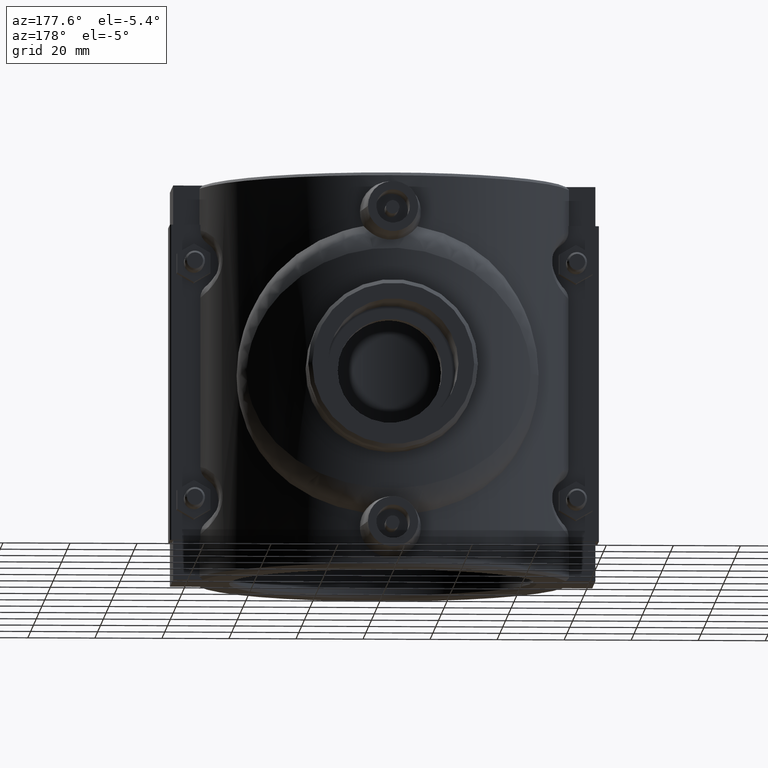
[diagram: clean part render]
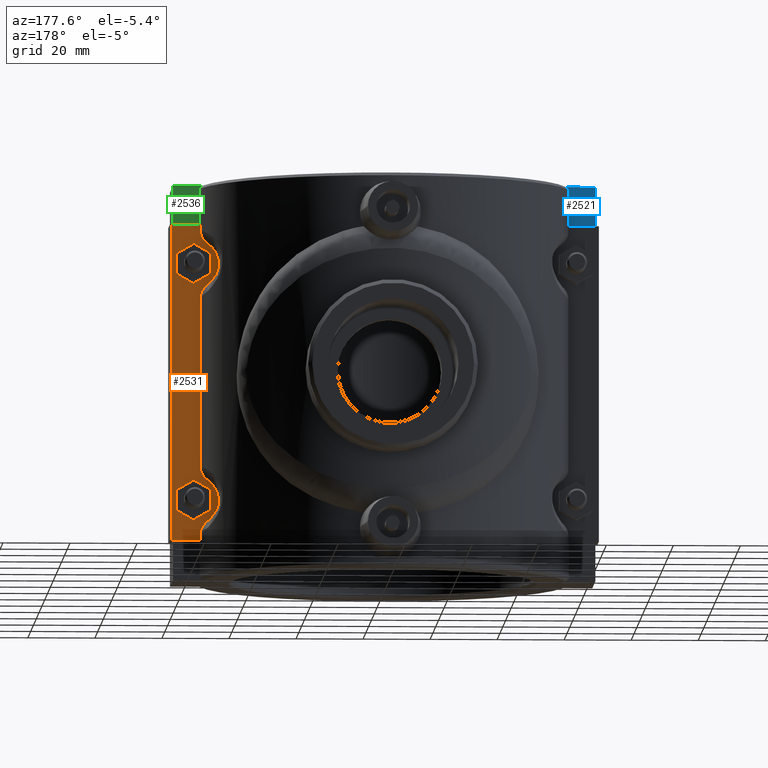
[diagram: same view with three faces highlighted in distinct colors, each labeled with its STEP entity id]
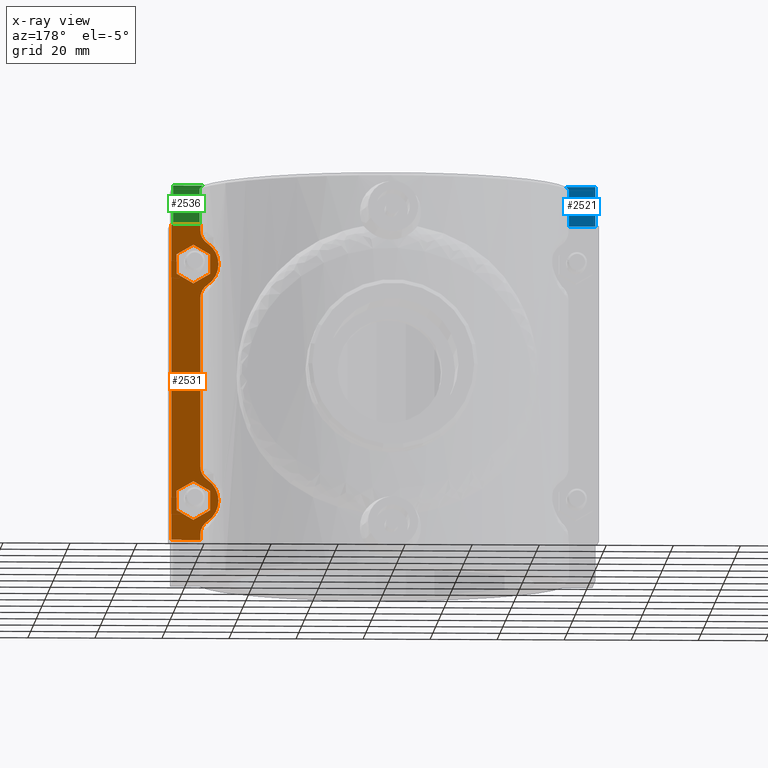
[diagram: x-ray of the same camera — body ghosted, the three highlighted faces saturated]
A machine part, auxiliary view with three faces highlighted in distinct colors.
The next image is the same camera in x-ray (body ghosted, the three faces saturated) — at least one of them is partly hidden behind the body in this view.
Their STEP definitions:

[orange] entity #2531 — the highlighted planar face has unit normal (0, 1, 0).
#106=FACE_BOUND('',#394,.T.);
#107=FACE_BOUND('',#395,.T.);
#159=B_SPLINE_CURVE_WITH_KNOTS('',3,(#3932,#3933,#3934,#3935,#3936,#3937,
#3938,#3939),.UNSPECIFIED.,.F.,.F.,(4,2,2,4),(-0.459821356887532,-0.317975190723429,
-0.174813727590547,0.),.UNSPECIFIED.);
#160=B_SPLINE_CURVE_WITH_KNOTS('',3,(#3943,#3944,#3945,#3946,#3947,#3948,
#3949,#3950),.UNSPECIFIED.,.F.,.F.,(4,2,2,4),(-0.46029236544087,-0.32664823032733,
-0.193140780308425,0.),.UNSPECIFIED.);
#161=B_SPLINE_CURVE_WITH_KNOTS('',3,(#3954,#3955,#3956,#3957,#3958,#3959,
#3960,#3961),.UNSPECIFIED.,.F.,.F.,(4,2,2,4),(-0.459821356887553,-0.317975190724508,
-0.174813727597946,0.),.UNSPECIFIED.);
#162=B_SPLINE_CURVE_WITH_KNOTS('',3,(#3965,#3966,#3967,#3968,#3969,#3970,
#3971,#3972),.UNSPECIFIED.,.F.,.F.,(4,2,2,4),(-0.46029236544095,-0.326648230334014,
-0.19314078031062,0.),.UNSPECIFIED.);
#232=FACE_OUTER_BOUND('',#393,.T.);
#393=EDGE_LOOP('',(#1780,#1781,#1782,#1783,#1784,#1785,#1786,#1787,#1788,
#1789,#1790,#1791));
#394=EDGE_LOOP('',(#1792,#1793,#1794,#1795,#1796,#1797));
#395=EDGE_LOOP('',(#1798,#1799,#1800,#1801,#1802,#1803));
#629=LINE('',#3925,#828);
#630=LINE('',#3928,#829);
#631=LINE('',#3930,#830);
#632=LINE('',#3952,#831);
#633=LINE('',#3974,#832);
#634=LINE('',#3975,#833);
#635=LINE('',#3978,#834);
#636=LINE('',#3980,#835);
#637=LINE('',#3982,#836);
#638=LINE('',#3984,#837);
#639=LINE('',#3986,#838);
#640=LINE('',#3987,#839);
#641=LINE('',#3990,#840);
#642=LINE('',#3992,#841);
#643=LINE('',#3994,#842);
#644=LINE('',#3996,#843);
#645=LINE('',#3998,#844);
#646=LINE('',#3999,#845);
#828=VECTOR('',#3002,94.4);
#829=VECTOR('',#3005,8.60009107475679);
#830=VECTOR('',#3006,1.70778280095321);
#831=VECTOR('',#3009,50.6155656019099);
#832=VECTOR('',#3012,1.70778280095672);
#833=VECTOR('',#3013,8.60009107475679);
#834=VECTOR('',#3014,5.77350269189626);
#835=VECTOR('',#3015,5.77350269189625);
#836=VECTOR('',#3016,5.77350269189625);
#837=VECTOR('',#3017,5.77350269189625);
#838=VECTOR('',#3018,5.77350269189626);
#839=VECTOR('',#3019,5.77350269189626);
#840=VECTOR('',#3020,5.77350269189626);
#841=VECTOR('',#3021,5.77350269189626);
#842=VECTOR('',#3022,5.77350269189625);
#843=VECTOR('',#3023,5.77350269189626);
#844=VECTOR('',#3024,5.77350269189624);
#845=VECTOR('',#3025,5.77350269189627);
#983=CIRCLE('',#2697,7.5);
#984=CIRCLE('',#2698,7.5);
#1113=VERTEX_POINT('',#3918);
#1116=VERTEX_POINT('',#3923);
#1117=VERTEX_POINT('',#3927);
#1118=VERTEX_POINT('',#3929);
#1119=VERTEX_POINT('',#3931);
#1120=VERTEX_POINT('',#3940);
#1121=VERTEX_POINT('',#3942);
#1122=VERTEX_POINT('',#3951);
#1123=VERTEX_POINT('',#3953);
#1124=VERTEX_POINT('',#3962);
#1125=VERTEX_POINT('',#3964);
#1126=VERTEX_POINT('',#3973);
#1127=VERTEX_POINT('',#3976);
#1128=VERTEX_POINT('',#3977);
#1129=VERTEX_POINT('',#3979);
#1130=VERTEX_POINT('',#3981);
#1131=VERTEX_POINT('',#3983);
#1132=VERTEX_POINT('',#3985);
#1133=VERTEX_POINT('',#3988);
#1134=VERTEX_POINT('',#3989);
#1135=VERTEX_POINT('',#3991);
#1136=VERTEX_POINT('',#3993);
#1137=VERTEX_POINT('',#3995);
#1138=VERTEX_POINT('',#3997);
#1384=EDGE_CURVE('',#1116,#1113,#629,.T.);
#1385=EDGE_CURVE('',#1117,#1116,#630,.T.);
#1386=EDGE_CURVE('',#1118,#1117,#631,.T.);
#1387=EDGE_CURVE('',#1119,#1118,#159,.T.);
#1388=EDGE_CURVE('',#1120,#1119,#983,.T.);
#1389=EDGE_CURVE('',#1121,#1120,#160,.T.);
#1390=EDGE_CURVE('',#1122,#1121,#632,.T.);
#1391=EDGE_CURVE('',#1123,#1122,#161,.T.);
#1392=EDGE_CURVE('',#1124,#1123,#984,.T.);
#1393=EDGE_CURVE('',#1125,#1124,#162,.T.);
#1394=EDGE_CURVE('',#1126,#1125,#633,.T.);
#1395=EDGE_CURVE('',#1113,#1126,#634,.T.);
#1396=EDGE_CURVE('',#1127,#1128,#635,.T.);
#1397=EDGE_CURVE('',#1129,#1127,#636,.T.);
#1398=EDGE_CURVE('',#1130,#1129,#637,.T.);
#1399=EDGE_CURVE('',#1131,#1130,#638,.T.);
#1400=EDGE_CURVE('',#1132,#1131,#639,.T.);
#1401=EDGE_CURVE('',#1128,#1132,#640,.T.);
#1402=EDGE_CURVE('',#1133,#1134,#641,.T.);
#1403=EDGE_CURVE('',#1135,#1133,#642,.T.);
#1404=EDGE_CURVE('',#1136,#1135,#643,.T.);
#1405=EDGE_CURVE('',#1137,#1136,#644,.T.);
#1406=EDGE_CURVE('',#1138,#1137,#645,.T.);
#1407=EDGE_CURVE('',#1134,#1138,#646,.T.);
#1780=ORIENTED_EDGE('',*,*,#1384,.F.);
#1781=ORIENTED_EDGE('',*,*,#1385,.F.);
#1782=ORIENTED_EDGE('',*,*,#1386,.F.);
#1783=ORIENTED_EDGE('',*,*,#1387,.F.);
#1784=ORIENTED_EDGE('',*,*,#1388,.F.);
#1785=ORIENTED_EDGE('',*,*,#1389,.F.);
#1786=ORIENTED_EDGE('',*,*,#1390,.F.);
#1787=ORIENTED_EDGE('',*,*,#1391,.F.);
#1788=ORIENTED_EDGE('',*,*,#1392,.F.);
#1789=ORIENTED_EDGE('',*,*,#1393,.F.);
#1790=ORIENTED_EDGE('',*,*,#1394,.F.);
#1791=ORIENTED_EDGE('',*,*,#1395,.F.);
#1792=ORIENTED_EDGE('',*,*,#1396,.F.);
#1793=ORIENTED_EDGE('',*,*,#1397,.F.);
#1794=ORIENTED_EDGE('',*,*,#1398,.F.);
#1795=ORIENTED_EDGE('',*,*,#1399,.F.);
#1796=ORIENTED_EDGE('',*,*,#1400,.F.);
#1797=ORIENTED_EDGE('',*,*,#1401,.F.);
#1798=ORIENTED_EDGE('',*,*,#1402,.F.);
#1799=ORIENTED_EDGE('',*,*,#1403,.F.);
#1800=ORIENTED_EDGE('',*,*,#1404,.F.);
#1801=ORIENTED_EDGE('',*,*,#1405,.F.);
#1802=ORIENTED_EDGE('',*,*,#1406,.F.);
#1803=ORIENTED_EDGE('',*,*,#1407,.F.);
#2440=PLANE('',#2696);
#2531=ADVANCED_FACE('',(#232,#106,#107),#2440,.T.);
#2696=AXIS2_PLACEMENT_3D('',#3926,#3003,#3004);
#2697=AXIS2_PLACEMENT_3D('',#3941,#3007,#3008);
#2698=AXIS2_PLACEMENT_3D('',#3963,#3010,#3011);
#3002=DIRECTION('',(0.,0.,1.));
#3003=DIRECTION('center_axis',(0.,1.,0.));
#3004=DIRECTION('ref_axis',(-1.,0.,0.));
#3005=DIRECTION('',(1.,0.,0.));
#3006=DIRECTION('',(0.,0.,-1.));
#3007=DIRECTION('center_axis',(0.,-1.,0.));
#3008=DIRECTION('ref_axis',(-1.,0.,0.));
#3009=DIRECTION('',(0.,0.,-1.));
#3010=DIRECTION('center_axis',(0.,-1.,0.));
#3011=DIRECTION('ref_axis',(-1.,0.,0.));
#3012=DIRECTION('',(0.,0.,-1.));
#3013=DIRECTION('',(-1.,0.,0.));
#3014=DIRECTION('',(-0.866025403784438,0.,-0.500000000000001));
#3015=DIRECTION('',(3.84592537276713E-16,0.,-1.));
#3016=DIRECTION('',(0.866025403784439,0.,-0.5));
#3017=DIRECTION('',(0.866025403784439,0.,0.5));
#3018=DIRECTION('',(0.,0.,1.));
#3019=DIRECTION('',(-0.866025403784439,0.,0.5));
#3020=DIRECTION('',(-0.866025403784438,0.,-0.5));
#3021=DIRECTION('',(1.53837014910685E-15,0.,-1.));
#3022=DIRECTION('',(0.866025403784438,0.,-0.500000000000001));
#3023=DIRECTION('',(0.866025403784438,0.,0.5));
#3024=DIRECTION('',(0.,0.,1.));
#3025=DIRECTION('',(-0.866025403784437,0.,0.500000000000003));
#3918=CARTESIAN_POINT('',(63.5,12.25,47.2));
#3923=CARTESIAN_POINT('',(63.5,12.25,-47.2));
#3925=CARTESIAN_POINT('',(63.5,12.25,0.));
#3926=CARTESIAN_POINT('Origin',(64.,12.25,0.));
#3927=CARTESIAN_POINT('',(54.8999089252432,12.25,-47.2));
#3928=CARTESIAN_POINT('',(64.,12.25,-47.2));
#3929=CARTESIAN_POINT('',(54.8999089179792,12.2500000162774,-45.4922171990468));
#3930=CARTESIAN_POINT('',(54.8999089252432,12.25,0.));
#3931=CARTESIAN_POINT('',(52.7995127249413,12.25,-41.6133651632646));
#3932=CARTESIAN_POINT('Ctrl Pts',(52.7995127249413,12.25,-41.6133651632646));
#3933=CARTESIAN_POINT('Ctrl Pts',(53.1916094332704,12.25,-41.8784384674486));
#3934=CARTESIAN_POINT('Ctrl Pts',(53.5436910312816,12.2500000000099,-42.1991941917333));
#3935=CARTESIAN_POINT('Ctrl Pts',(54.1450167782941,12.2500000000099,-42.9357612802664));
#3936=CARTESIAN_POINT('Ctrl Pts',(54.3903496386964,12.2500000000087,-43.3488584304872));
#3937=CARTESIAN_POINT('Ctrl Pts',(54.78608475066,12.2500000000087,-44.3328058946848));
#3938=CARTESIAN_POINT('Ctrl Pts',(54.8999089252432,12.25,-44.9095047780439));
#3939=CARTESIAN_POINT('Ctrl Pts',(54.8999089252432,12.25,-45.4922172033458));
#3940=CARTESIAN_POINT('',(52.7995127249413,12.25,-29.1866348367354));
#3941=CARTESIAN_POINT('Origin',(57.,12.25,-35.4));
#3942=CARTESIAN_POINT('',(54.8999089179792,12.2500000162774,-25.3077828009532));
#3943=CARTESIAN_POINT('Ctrl Pts',(54.8999089252432,12.25,-25.3077827966542));
#3944=CARTESIAN_POINT('Ctrl Pts',(54.8999089252432,12.25,-25.7528665930126));
#3945=CARTESIAN_POINT('Ctrl Pts',(54.8334749357762,12.2499999999938,-26.195255619295));
#3946=CARTESIAN_POINT('Ctrl Pts',(54.575738338568,12.2499999999938,-27.0470670102956));
#3947=CARTESIAN_POINT('Ctrl Pts',(54.3859816276151,12.2499999994194,-27.4519085707767));
#3948=CARTESIAN_POINT('Ctrl Pts',(53.7909628622603,12.2499999994194,-28.3632881933961));
#3949=CARTESIAN_POINT('Ctrl Pts',(53.3328701453743,12.25,-28.8260635522996));
#3950=CARTESIAN_POINT('Ctrl Pts',(52.7995127249413,12.25,-29.1866348367354));
#3951=CARTESIAN_POINT('',(54.8999089179732,12.2500000162907,25.3077828009567));
#3952=CARTESIAN_POINT('',(54.8999089252432,12.25,0.));
#3953=CARTESIAN_POINT('',(52.7995127249413,12.25,29.1866348367354));
#3954=CARTESIAN_POINT('Ctrl Pts',(52.7995127249413,12.25,29.1866348367354));
#3955=CARTESIAN_POINT('Ctrl Pts',(53.1916094332674,12.25,28.9215615325534));
#3956=CARTESIAN_POINT('Ctrl Pts',(53.5436910312763,12.2500000000099,28.6008058082714));
#3957=CARTESIAN_POINT('Ctrl Pts',(54.1450167782749,12.2500000000099,27.8642387197588));
#3958=CARTESIAN_POINT('Ctrl Pts',(54.3903496386699,12.2500000000087,27.4511415695586));
#3959=CARTESIAN_POINT('Ctrl Pts',(54.7860847506504,12.2500000000087,26.4671941053638));
#3960=CARTESIAN_POINT('Ctrl Pts',(54.8999089252432,12.25,25.8904952219807));
#3961=CARTESIAN_POINT('Ctrl Pts',(54.8999089252432,12.25,25.3077827966542));
#3962=CARTESIAN_POINT('',(52.7995127249413,12.25,41.6133651632646));
#3963=CARTESIAN_POINT('Origin',(57.,12.25,35.4));
#3964=CARTESIAN_POINT('',(54.8999089179732,12.2500000162907,45.4922171990433));
#3965=CARTESIAN_POINT('Ctrl Pts',(54.8999089252432,12.25,45.4922172033458));
#3966=CARTESIAN_POINT('Ctrl Pts',(54.8999089252432,12.25,45.0471334070096));
#3967=CARTESIAN_POINT('Ctrl Pts',(54.8334749357828,12.2499999999938,44.6047443807489));
#3968=CARTESIAN_POINT('Ctrl Pts',(54.575738338589,12.2499999999938,43.7529329897518));
#3969=CARTESIAN_POINT('Ctrl Pts',(54.3859816276336,12.2499999994192,43.3480914292553));
#3970=CARTESIAN_POINT('Ctrl Pts',(53.7909628622707,12.2499999994192,42.4367118066144));
#3971=CARTESIAN_POINT('Ctrl Pts',(53.3328701453803,12.25,41.9739364477045));
#3972=CARTESIAN_POINT('Ctrl Pts',(52.7995127249413,12.25,41.6133651632646));
#3973=CARTESIAN_POINT('',(54.8999089252432,12.25,47.2));
#3974=CARTESIAN_POINT('',(54.8999089252432,12.25,0.));
#3975=CARTESIAN_POINT('',(64.,12.25,47.2));
#3976=CARTESIAN_POINT('',(62.,12.25,32.5132486540519));
#3977=CARTESIAN_POINT('',(57.,12.25,29.6264973081037));
#3978=CARTESIAN_POINT('',(55.7106751765077,12.25,28.8821052741876));
#3979=CARTESIAN_POINT('',(62.,12.25,38.2867513459481));
#3980=CARTESIAN_POINT('',(62.,12.25,19.1433756729741));
#3981=CARTESIAN_POINT('',(57.,12.25,41.1735026918963));
#3982=CARTESIAN_POINT('',(68.5393248234923,12.25,34.5112703987865));
#3983=CARTESIAN_POINT('',(52.,12.25,38.2867513459481));
#3984=CARTESIAN_POINT('',(48.2106751765077,12.25,36.0989836390579));
#3985=CARTESIAN_POINT('',(52.,12.25,32.5132486540519));
#3986=CARTESIAN_POINT('',(52.,12.25,16.2566243270259));
#3987=CARTESIAN_POINT('',(66.0393248234923,12.25,24.407640687968));
#3988=CARTESIAN_POINT('',(62.,12.25,-38.2867513459481));
#3989=CARTESIAN_POINT('',(57.,12.25,-41.1735026918963));
#3990=CARTESIAN_POINT('',(71.0393248234923,12.25,-33.0678947258124));
#3991=CARTESIAN_POINT('',(62.,12.25,-32.5132486540519));
#3992=CARTESIAN_POINT('',(62.,12.25,-16.2566243270259));
#3993=CARTESIAN_POINT('',(57.,12.25,-29.6264973081037));
#3994=CARTESIAN_POINT('',(53.2106751765077,12.25,-27.4387296012135));
#3995=CARTESIAN_POINT('',(52.,12.25,-32.5132486540519));
#3996=CARTESIAN_POINT('',(63.5393248234923,12.25,-25.8510163609421));
#3997=CARTESIAN_POINT('',(52.,12.25,-38.2867513459481));
#3998=CARTESIAN_POINT('',(52.,12.25,-19.1433756729741));
#3999=CARTESIAN_POINT('',(50.7106751765077,12.25,-37.542359312032));

[blue] entity #2521 — the highlighted planar face has unit normal (0, 1, 0).
#40=(
BOUNDED_CURVE()
B_SPLINE_CURVE(2,(#3786,#3787,#3788),.UNSPECIFIED.,.F.,.F.)
B_SPLINE_CURVE_WITH_KNOTS((3,3),(0.,0.128620455004873),.UNSPECIFIED.)
CURVE()
GEOMETRIC_REPRESENTATION_ITEM()
RATIONAL_B_SPLINE_CURVE((1.,1.00003389745317,1.))
REPRESENTATION_ITEM('')
);
#222=FACE_OUTER_BOUND('',#383,.T.);
#383=EDGE_LOOP('',(#1741,#1742,#1743,#1744,#1745));
#588=LINE('',#3597,#787);
#608=LINE('',#3775,#807);
#612=LINE('',#3784,#811);
#613=LINE('',#3789,#812);
#787=VECTOR('',#2925,7.8864807873785);
#807=VECTOR('',#2957,11.8);
#811=VECTOR('',#2965,8.80535081763146);
#812=VECTOR('',#2966,10.9);
#1074=VERTEX_POINT('',#3587);
#1078=VERTEX_POINT('',#3595);
#1100=VERTEX_POINT('',#3773);
#1103=VERTEX_POINT('',#3783);
#1104=VERTEX_POINT('',#3785);
#1330=EDGE_CURVE('',#1074,#1078,#588,.T.);
#1358=EDGE_CURVE('',#1078,#1100,#608,.T.);
#1362=EDGE_CURVE('',#1100,#1103,#612,.T.);
#1363=EDGE_CURVE('',#1104,#1103,#40,.F.);
#1364=EDGE_CURVE('',#1104,#1074,#613,.T.);
#1741=ORIENTED_EDGE('',*,*,#1330,.T.);
#1742=ORIENTED_EDGE('',*,*,#1358,.T.);
#1743=ORIENTED_EDGE('',*,*,#1362,.T.);
#1744=ORIENTED_EDGE('',*,*,#1363,.F.);
#1745=ORIENTED_EDGE('',*,*,#1364,.T.);
#2433=PLANE('',#2685);
#2521=ADVANCED_FACE('',(#222),#2433,.T.);
#2685=AXIS2_PLACEMENT_3D('',#3782,#2963,#2964);
#2925=DIRECTION('',(-1.,0.,0.));
#2957=DIRECTION('',(0.,0.,1.));
#2963=DIRECTION('center_axis',(0.,1.,0.));
#2964=DIRECTION('ref_axis',(-1.,0.,0.));
#2965=DIRECTION('',(1.,0.,0.));
#2966=DIRECTION('',(0.,0.,-1.));
#3587=CARTESIAN_POINT('',(-55.1135192126215,11.25,47.2));
#3595=CARTESIAN_POINT('',(-63.,11.25,47.2));
#3597=CARTESIAN_POINT('',(-56.9169371586253,11.25,47.2));
#3773=CARTESIAN_POINT('',(-63.,11.25,59.));
#3775=CARTESIAN_POINT('',(-63.,11.25,0.));
#3782=CARTESIAN_POINT('Origin',(-55.1135192126215,11.25,0.));
#3783=CARTESIAN_POINT('',(-54.1946491823686,11.25,59.));
#3784=CARTESIAN_POINT('',(-57.3981221495988,11.25,59.));
#3785=CARTESIAN_POINT('',(-55.1135192126215,11.25,58.1));
#3786=CARTESIAN_POINT('Ctrl Pts',(-54.1946491823686,11.25,59.));
#3787=CARTESIAN_POINT('Ctrl Pts',(-54.6503790770477,11.25,58.553782804624));
#3788=CARTESIAN_POINT('Ctrl Pts',(-55.1135192126215,11.25,58.1));
#3789=CARTESIAN_POINT('',(-55.1135192126215,11.25,0.));

[green] entity #2536 — the highlighted planar face has unit normal (0, 1, 0).
#41=(
BOUNDED_CURVE()
B_SPLINE_CURVE(2,(#4032,#4033,#4034),.UNSPECIFIED.,.F.,.F.)
B_SPLINE_CURVE_WITH_KNOTS((3,3),(0.,0.128620455004872),.UNSPECIFIED.)
CURVE()
GEOMETRIC_REPRESENTATION_ITEM()
RATIONAL_B_SPLINE_CURVE((1.,1.00003389771639,1.))
REPRESENTATION_ITEM('')
);
#237=FACE_OUTER_BOUND('',#400,.T.);
#400=EDGE_LOOP('',(#1826,#1827,#1828,#1829,#1830));
#653=LINE('',#4018,#852);
#656=LINE('',#4024,#855);
#659=LINE('',#4030,#858);
#660=LINE('',#4035,#859);
#852=VECTOR('',#3042,7.8864807873785);
#855=VECTOR('',#3047,11.8);
#858=VECTOR('',#3052,10.9);
#859=VECTOR('',#3053,8.80535081763146);
#1144=VERTEX_POINT('',#4015);
#1145=VERTEX_POINT('',#4017);
#1147=VERTEX_POINT('',#4023);
#1149=VERTEX_POINT('',#4029);
#1150=VERTEX_POINT('',#4031);
#1416=EDGE_CURVE('',#1145,#1144,#653,.T.);
#1419=EDGE_CURVE('',#1145,#1147,#656,.T.);
#1422=EDGE_CURVE('',#1149,#1144,#659,.T.);
#1423=EDGE_CURVE('',#1150,#1149,#41,.F.);
#1424=EDGE_CURVE('',#1147,#1150,#660,.T.);
#1826=ORIENTED_EDGE('',*,*,#1416,.T.);
#1827=ORIENTED_EDGE('',*,*,#1422,.F.);
#1828=ORIENTED_EDGE('',*,*,#1423,.F.);
#1829=ORIENTED_EDGE('',*,*,#1424,.F.);
#1830=ORIENTED_EDGE('',*,*,#1419,.F.);
#2445=PLANE('',#2705);
#2536=ADVANCED_FACE('',(#237),#2445,.T.);
#2705=AXIS2_PLACEMENT_3D('',#4028,#3050,#3051);
#3042=DIRECTION('',(-1.,0.,0.));
#3047=DIRECTION('',(0.,0.,1.));
#3050=DIRECTION('center_axis',(0.,1.,0.));
#3051=DIRECTION('ref_axis',(-1.,0.,0.));
#3052=DIRECTION('',(0.,0.,-1.));
#3053=DIRECTION('',(-1.,0.,0.));
#4015=CARTESIAN_POINT('',(55.1135192126215,11.25,47.2));
#4017=CARTESIAN_POINT('',(63.,11.25,47.2));
#4018=CARTESIAN_POINT('',(60.8601775523145,11.25,47.2));
#4023=CARTESIAN_POINT('',(63.,11.25,59.));
#4024=CARTESIAN_POINT('',(63.,11.25,0.));
#4028=CARTESIAN_POINT('Origin',(63.,11.25,0.));
#4029=CARTESIAN_POINT('',(55.1135192126215,11.25,58.1));
#4030=CARTESIAN_POINT('',(55.1135192126215,11.25,0.));
#4031=CARTESIAN_POINT('',(54.1946491823686,11.25,59.));
#4032=CARTESIAN_POINT('Ctrl Pts',(55.1135192126215,11.25,58.1));
#4033=CARTESIAN_POINT('Ctrl Pts',(54.6503790770346,11.25,58.5537828046367));
#4034=CARTESIAN_POINT('Ctrl Pts',(54.1946491823686,11.25,59.));
#4035=CARTESIAN_POINT('',(63.,11.25,59.));